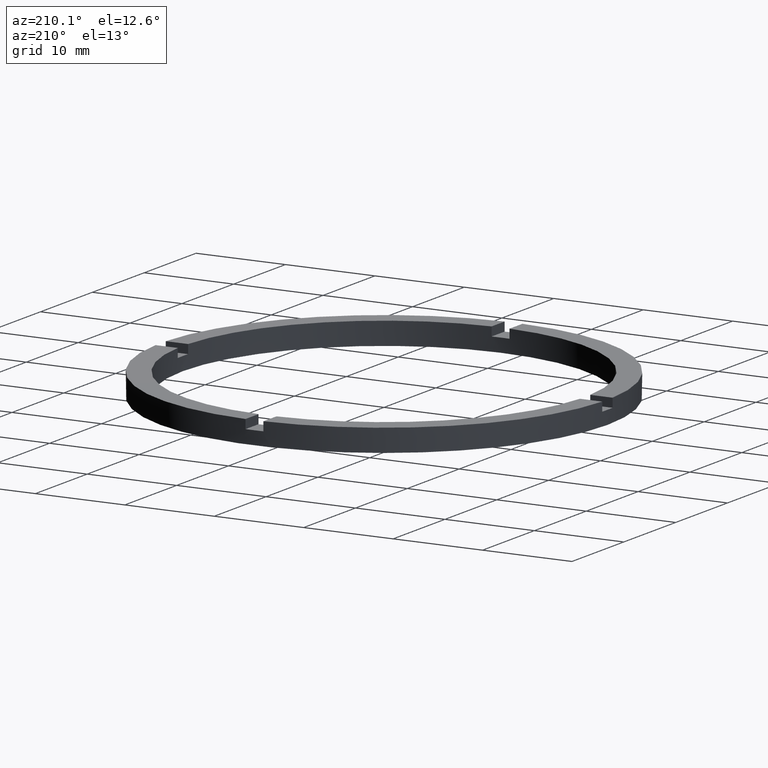
[diagram: clean part render]
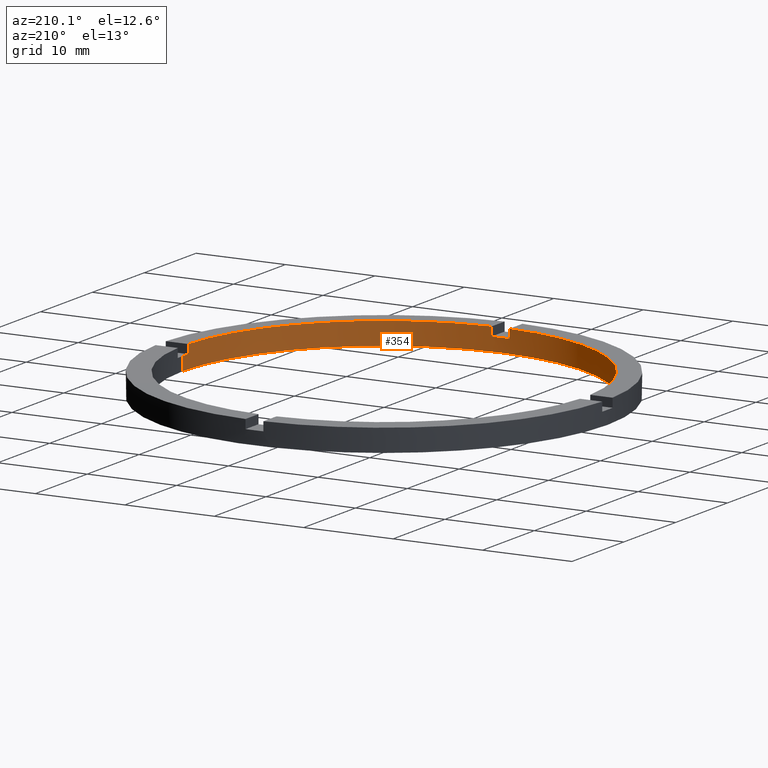
[diagram: same view with one face highlighted and labeled with its STEP entity id]
A machine part, auxiliary view. The second image highlights one B-rep face of the part: STEP entity #354.
In plain terms, the highlighted cylindrical surface (partial cylindrical patch) has radius 22.5 mm, axis along (-0, -0, -1).
Its self-contained STEP definition (entity closure, byte-faithful):
#16 = AXIS2_PLACEMENT_3D ( 'NONE', #551, #469, #712 ) ;
#19 = ORIENTED_EDGE ( 'NONE', *, *, #85, .F. ) ;
#27 = CARTESIAN_POINT ( 'NONE',  ( 0.000000000000000000, 0.000000000000000000, 2.500000000000000000 ) ) ;
#29 = CARTESIAN_POINT ( 'NONE',  ( -22.47776679298902636, -1.000000000000025535, 2.500000000000000000 ) ) ;
#64 = DIRECTION ( 'NONE',  ( 1.000000000000000000, 0.000000000000000000, 0.000000000000000000 ) ) ;
#65 = EDGE_CURVE ( 'NONE', #685, #372, #734, .T. ) ;
#68 = CARTESIAN_POINT ( 'NONE',  ( 22.47776679298901925, -1.000000000000157652, 2.500000000000000000 ) ) ;
#69 = EDGE_CURVE ( 'NONE', #508, #155, #720, .T. ) ;
#77 = DIRECTION ( 'NONE',  ( -0.000000000000000000, -0.000000000000000000, -1.000000000000000000 ) ) ;
#81 = CARTESIAN_POINT ( 'NONE',  ( 0.000000000000000000, 0.000000000000000000, 1.500000000000000000 ) ) ;
#83 = CARTESIAN_POINT ( 'NONE',  ( 0.9999999999998391287, -22.47776679298903346, 1.500000000000000000 ) ) ;
#84 = DIRECTION ( 'NONE',  ( 0.000000000000000000, 0.000000000000000000, 1.000000000000000000 ) ) ;
#85 = EDGE_CURVE ( 'NONE', #525, #295, #477, .T. ) ;
#95 = EDGE_CURVE ( 'NONE', #586, #234, #506, .T. ) ;
#96 = CARTESIAN_POINT ( 'NONE',  ( 0.000000000000000000, 0.000000000000000000, 0.000000000000000000 ) ) ;
#104 = CARTESIAN_POINT ( 'NONE',  ( -1.000000000000160982, -22.47776679298901925, 2.500000000000000000 ) ) ;
#106 = DIRECTION ( 'NONE',  ( 0.000000000000000000, 0.000000000000000000, 1.000000000000000000 ) ) ;
#109 = EDGE_LOOP ( 'NONE', ( #538, #266, #708, #19, #721, #435, #570, #274, #697, #694, #458, #267 ) ) ;
#152 = EDGE_CURVE ( 'NONE', #586, #703, #233, .T. ) ;
#155 = VERTEX_POINT ( 'NONE', #775 ) ;
#158 = CARTESIAN_POINT ( 'NONE',  ( -22.50000000000000355, 0.000000000000000000, 2.500000000000000000 ) ) ;
#172 = EDGE_CURVE ( 'NONE', #508, #703, #231, .T. ) ;
#199 = CIRCLE ( 'NONE', #770, 22.50000000000000355 ) ;
#221 = DIRECTION ( 'NONE',  ( 1.000000000000000000, 0.000000000000000000, 0.000000000000000000 ) ) ;
#227 = VECTOR ( 'NONE', #299, 1000.000000000000000 ) ;
#231 = LINE ( 'NONE', #333, #500 ) ;
#233 = CIRCLE ( 'NONE', #526, 22.50000000000000355 ) ;
#234 = VERTEX_POINT ( 'NONE', #83 ) ;
#236 = CARTESIAN_POINT ( 'NONE',  ( 0.000000000000000000, 0.000000000000000000, 2.500000000000000000 ) ) ;
#246 = DIRECTION ( 'NONE',  ( -0.000000000000000000, -0.000000000000000000, -1.000000000000000000 ) ) ;
#249 = CARTESIAN_POINT ( 'NONE',  ( 0.9999999999998391287, -22.47776679298903346, 2.500000000000000000 ) ) ;
#266 = ORIENTED_EDGE ( 'NONE', *, *, #599, .T. ) ;
#267 = ORIENTED_EDGE ( 'NONE', *, *, #172, .F. ) ;
#274 = ORIENTED_EDGE ( 'NONE', *, *, #517, .F. ) ;
#290 = DIRECTION ( 'NONE',  ( 0.000000000000000000, 0.000000000000000000, 1.000000000000000000 ) ) ;
#295 = VERTEX_POINT ( 'NONE', #371 ) ;
#299 = DIRECTION ( 'NONE',  ( -0.000000000000000000, -0.000000000000000000, -1.000000000000000000 ) ) ;
#302 = EDGE_CURVE ( 'NONE', #525, #564, #441, .T. ) ;
#310 = CARTESIAN_POINT ( 'NONE',  ( -22.47776679298902636, -1.000000000000025535, 1.500000000000000000 ) ) ;
#319 = AXIS2_PLACEMENT_3D ( 'NONE', #512, #509, #64 ) ;
#322 = AXIS2_PLACEMENT_3D ( 'NONE', #81, #670, #221 ) ;
#333 = CARTESIAN_POINT ( 'NONE',  ( 22.47776679298901925, -1.000000000000157652, 2.500000000000000000 ) ) ;
#335 = CARTESIAN_POINT ( 'NONE',  ( 0.000000000000000000, 0.000000000000000000, 2.500000000000000000 ) ) ;
#342 = EDGE_CURVE ( 'NONE', #783, #234, #440, .T. ) ;
#348 = CARTESIAN_POINT ( 'NONE',  ( -22.47776679298902636, -1.000000000000025535, 2.500000000000000000 ) ) ;
#353 = DIRECTION ( 'NONE',  ( 1.000000000000000000, 0.000000000000000000, 0.000000000000000000 ) ) ;
#354 = ADVANCED_FACE ( 'NONE', ( #657 ), #414, .F. ) ;
#356 = CARTESIAN_POINT ( 'NONE',  ( 22.47776679298901925, -1.000000000000157652, 1.500000000000000000 ) ) ;
#366 = EDGE_CURVE ( 'NONE', #685, #564, #699, .T. ) ;
#367 = CARTESIAN_POINT ( 'NONE',  ( -22.50000000000000355, 0.000000000000000000, 1.500000000000000000 ) ) ;
#368 = DIRECTION ( 'NONE',  ( -1.000000000000000000, 0.000000000000000000, 0.000000000000000000 ) ) ;
#371 = CARTESIAN_POINT ( 'NONE',  ( -22.50000000000000355, 0.000000000000000000, 0.000000000000000000 ) ) ;
#372 = VERTEX_POINT ( 'NONE', #613 ) ;
#391 = LINE ( 'NONE', #104, #655 ) ;
#401 = VECTOR ( 'NONE', #77, 1000.000000000000000 ) ;
#414 = CYLINDRICAL_SURFACE ( 'NONE', #520, 22.50000000000000355 ) ;
#419 = VERTEX_POINT ( 'NONE', #585 ) ;
#435 = ORIENTED_EDGE ( 'NONE', *, *, #366, .F. ) ;
#440 = CIRCLE ( 'NONE', #322, 22.50000000000000355 ) ;
#441 = CIRCLE ( 'NONE', #16, 22.50000000000000355 ) ;
#456 = DIRECTION ( 'NONE',  ( -0.000000000000000000, -0.000000000000000000, -1.000000000000000000 ) ) ;
#458 = ORIENTED_EDGE ( 'NONE', *, *, #152, .T. ) ;
#469 = DIRECTION ( 'NONE',  ( 0.000000000000000000, 0.000000000000000000, 1.000000000000000000 ) ) ;
#477 = LINE ( 'NONE', #158, #740 ) ;
#500 = VECTOR ( 'NONE', #574, 1000.000000000000000 ) ;
#506 = LINE ( 'NONE', #249, #227 ) ;
#508 = VERTEX_POINT ( 'NONE', #356 ) ;
#509 = DIRECTION ( 'NONE',  ( 0.000000000000000000, 0.000000000000000000, 1.000000000000000000 ) ) ;
#512 = CARTESIAN_POINT ( 'NONE',  ( 0.000000000000000000, 0.000000000000000000, 1.500000000000000000 ) ) ;
#517 = EDGE_CURVE ( 'NONE', #783, #372, #391, .T. ) ;
#520 = AXIS2_PLACEMENT_3D ( 'NONE', #335, #456, #368 ) ;
#525 = VERTEX_POINT ( 'NONE', #367 ) ;
#526 = AXIS2_PLACEMENT_3D ( 'NONE', #236, #290, #527 ) ;
#527 = DIRECTION ( 'NONE',  ( 1.000000000000000000, 0.000000000000000000, 0.000000000000000000 ) ) ;
#538 = ORIENTED_EDGE ( 'NONE', *, *, #69, .T. ) ;
#551 = CARTESIAN_POINT ( 'NONE',  ( 0.000000000000000000, 0.000000000000000000, 1.500000000000000000 ) ) ;
#557 = DIRECTION ( 'NONE',  ( 0.000000000000000000, 0.000000000000000000, 1.000000000000000000 ) ) ;
#564 = VERTEX_POINT ( 'NONE', #310 ) ;
#570 = ORIENTED_EDGE ( 'NONE', *, *, #65, .T. ) ;
#574 = DIRECTION ( 'NONE',  ( 0.000000000000000000, 0.000000000000000000, 1.000000000000000000 ) ) ;
#582 = CARTESIAN_POINT ( 'NONE',  ( 0.9999999999998391287, -22.47776679298903346, 2.500000000000000000 ) ) ;
#585 = CARTESIAN_POINT ( 'NONE',  ( 22.50000000000000355, 2.755455298081545172E-15, 0.000000000000000000 ) ) ;
#586 = VERTEX_POINT ( 'NONE', #582 ) ;
#598 = AXIS2_PLACEMENT_3D ( 'NONE', #27, #557, #631 ) ;
#599 = EDGE_CURVE ( 'NONE', #155, #419, #673, .T. ) ;
#613 = CARTESIAN_POINT ( 'NONE',  ( -1.000000000000160982, -22.47776679298901925, 2.500000000000000000 ) ) ;
#616 = CARTESIAN_POINT ( 'NONE',  ( 22.50000000000000355, 2.755455298081545172E-15, 2.500000000000000000 ) ) ;
#631 = DIRECTION ( 'NONE',  ( 1.000000000000000000, 0.000000000000000000, 0.000000000000000000 ) ) ;
#655 = VECTOR ( 'NONE', #84, 1000.000000000000000 ) ;
#657 = FACE_OUTER_BOUND ( 'NONE', #109, .T. ) ;
#664 = VECTOR ( 'NONE', #698, 1000.000000000000000 ) ;
#670 = DIRECTION ( 'NONE',  ( -0.000000000000000000, 0.000000000000000000, 1.000000000000000000 ) ) ;
#673 = LINE ( 'NONE', #616, #664 ) ;
#685 = VERTEX_POINT ( 'NONE', #348 ) ;
#694 = ORIENTED_EDGE ( 'NONE', *, *, #95, .F. ) ;
#697 = ORIENTED_EDGE ( 'NONE', *, *, #342, .T. ) ;
#698 = DIRECTION ( 'NONE',  ( -0.000000000000000000, -0.000000000000000000, -1.000000000000000000 ) ) ;
#699 = LINE ( 'NONE', #29, #401 ) ;
#703 = VERTEX_POINT ( 'NONE', #68 ) ;
#708 = ORIENTED_EDGE ( 'NONE', *, *, #772, .F. ) ;
#712 = DIRECTION ( 'NONE',  ( 1.000000000000000000, 0.000000000000000000, 0.000000000000000000 ) ) ;
#720 = CIRCLE ( 'NONE', #319, 22.50000000000000355 ) ;
#721 = ORIENTED_EDGE ( 'NONE', *, *, #302, .T. ) ;
#734 = CIRCLE ( 'NONE', #598, 22.50000000000000355 ) ;
#736 = CARTESIAN_POINT ( 'NONE',  ( -1.000000000000160982, -22.47776679298901925, 1.500000000000000000 ) ) ;
#740 = VECTOR ( 'NONE', #246, 1000.000000000000000 ) ;
#770 = AXIS2_PLACEMENT_3D ( 'NONE', #96, #106, #353 ) ;
#772 = EDGE_CURVE ( 'NONE', #295, #419, #199, .T. ) ;
#775 = CARTESIAN_POINT ( 'NONE',  ( 22.50000000000000355, 2.755455298081545172E-15, 1.500000000000000000 ) ) ;
#783 = VERTEX_POINT ( 'NONE', #736 ) ;